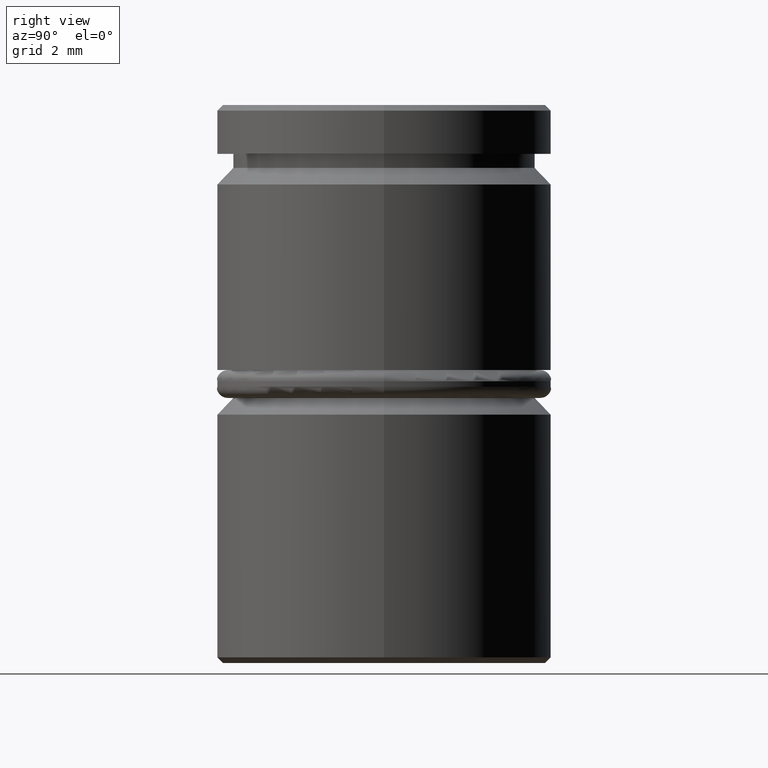
[diagram: clean part render]
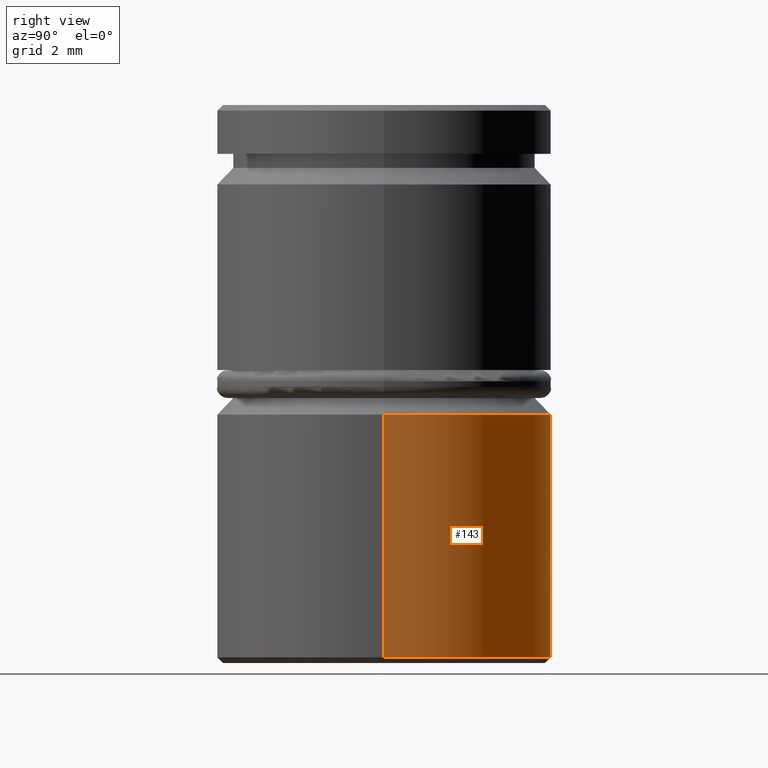
[diagram: same view with one face highlighted and labeled with its STEP entity id]
A machine part, right view. The second image highlights one B-rep face of the part: STEP entity #143.
In plain terms, the highlighted cylindrical surface (partial cylindrical patch) has radius 3 mm, axis along (-0, -0, 1).
Its self-contained STEP definition (entity closure, byte-faithful):
#54 = EDGE_CURVE ( 'NONE', #797, #947, #249, .T. ) ;
#57 = VERTEX_POINT ( 'NONE', #158 ) ;
#91 = DIRECTION ( 'NONE',  ( 1.000000000000000000, 0.000000000000000000, 0.000000000000000000 ) ) ;
#111 = CIRCLE ( 'NONE', #490, 3.000000000000000000 ) ;
#143 = ADVANCED_FACE ( 'NONE', ( #730 ), #1089, .T. ) ;
#158 = CARTESIAN_POINT ( 'NONE',  ( -3.000000000000000000, 3.673940397442059868E-16, -5.550000000000000711 ) ) ;
#166 = AXIS2_PLACEMENT_3D ( 'NONE', #639, #908, #91 ) ;
#180 = VECTOR ( 'NONE', #931, 1000.000000000000000 ) ;
#225 = VERTEX_POINT ( 'NONE', #809 ) ;
#249 = LINE ( 'NONE', #1167, #627 ) ;
#359 = CIRCLE ( 'NONE', #552, 3.000000000000000000 ) ;
#386 = CARTESIAN_POINT ( 'NONE',  ( -3.000000000000000000, 3.673940397442059868E-16, 0.000000000000000000 ) ) ;
#467 = DIRECTION ( 'NONE',  ( -0.000000000000000000, -0.000000000000000000, 1.000000000000000000 ) ) ;
#490 = AXIS2_PLACEMENT_3D ( 'NONE', #776, #1146, #760 ) ;
#511 = EDGE_CURVE ( 'NONE', #797, #225, #359, .T. ) ;
#548 = ORIENTED_EDGE ( 'NONE', *, *, #667, .T. ) ;
#552 = AXIS2_PLACEMENT_3D ( 'NONE', #893, #467, #1135 ) ;
#556 = ORIENTED_EDGE ( 'NONE', *, *, #1021, .T. ) ;
#627 = VECTOR ( 'NONE', #972, 1000.000000000000000 ) ;
#639 = CARTESIAN_POINT ( 'NONE',  ( 0.000000000000000000, 0.000000000000000000, 0.000000000000000000 ) ) ;
#667 = EDGE_CURVE ( 'NONE', #57, #947, #111, .T. ) ;
#730 = FACE_OUTER_BOUND ( 'NONE', #1071, .T. ) ;
#749 = LINE ( 'NONE', #386, #180 ) ;
#760 = DIRECTION ( 'NONE',  ( 1.000000000000000000, 0.000000000000000000, 0.000000000000000000 ) ) ;
#776 = CARTESIAN_POINT ( 'NONE',  ( 0.000000000000000000, 0.000000000000000000, -5.550000000000000711 ) ) ;
#797 = VERTEX_POINT ( 'NONE', #874 ) ;
#809 = CARTESIAN_POINT ( 'NONE',  ( -3.000000000000000000, 3.673940397442059868E-16, -9.900000000000000355 ) ) ;
#844 = ORIENTED_EDGE ( 'NONE', *, *, #54, .F. ) ;
#874 = CARTESIAN_POINT ( 'NONE',  ( 3.000000000000000000, 0.000000000000000000, -9.900000000000000355 ) ) ;
#893 = CARTESIAN_POINT ( 'NONE',  ( 0.000000000000000000, 0.000000000000000000, -9.900000000000000355 ) ) ;
#908 = DIRECTION ( 'NONE',  ( -0.000000000000000000, -0.000000000000000000, 1.000000000000000000 ) ) ;
#925 = ORIENTED_EDGE ( 'NONE', *, *, #511, .T. ) ;
#931 = DIRECTION ( 'NONE',  ( -0.000000000000000000, -0.000000000000000000, 1.000000000000000000 ) ) ;
#947 = VERTEX_POINT ( 'NONE', #1163 ) ;
#972 = DIRECTION ( 'NONE',  ( -0.000000000000000000, -0.000000000000000000, 1.000000000000000000 ) ) ;
#1021 = EDGE_CURVE ( 'NONE', #225, #57, #749, .T. ) ;
#1071 = EDGE_LOOP ( 'NONE', ( #925, #556, #548, #844 ) ) ;
#1089 = CYLINDRICAL_SURFACE ( 'NONE', #166, 3.000000000000000000 ) ;
#1135 = DIRECTION ( 'NONE',  ( -1.000000000000000000, 0.000000000000000000, 0.000000000000000000 ) ) ;
#1146 = DIRECTION ( 'NONE',  ( 0.000000000000000000, 0.000000000000000000, -1.000000000000000000 ) ) ;
#1163 = CARTESIAN_POINT ( 'NONE',  ( 3.000000000000000000, 0.000000000000000000, -5.550000000000000711 ) ) ;
#1167 = CARTESIAN_POINT ( 'NONE',  ( 3.000000000000000000, 0.000000000000000000, 0.000000000000000000 ) ) ;